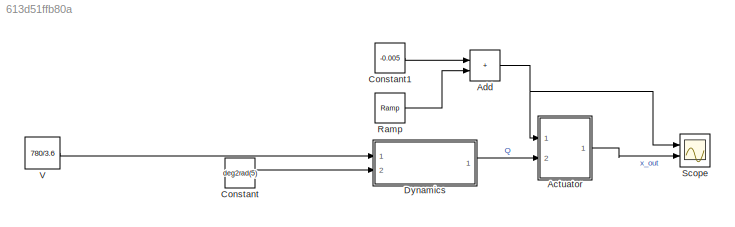
MODEL slx_613d51ffb80a
KIND model
CONFIG AbsTol = auto
CONFIG EnableMultiTasking = off
CONFIG FixedStep = auto
CONFIG MaxStep = auto
CONFIG MinStep = auto
CONFIG RelTol = 1e-3
CONFIG SampleTimeConstraint = Unconstrained
CONFIG SolverName = VariableStepAuto
CONFIG StartTime = 0.0
CONFIG StopTime = 10.0
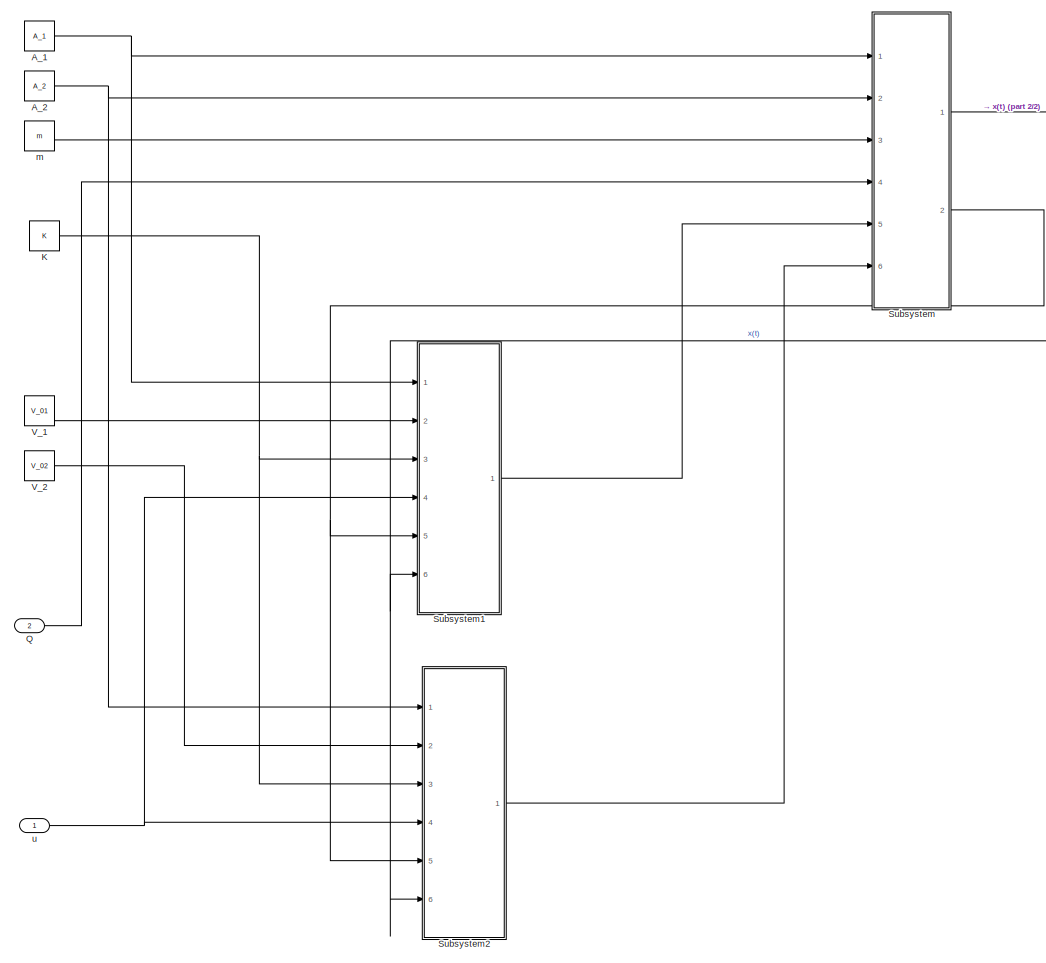
[diagram: Actuator - part 1/2, most of the canvas]
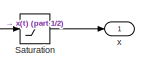
[diagram: Actuator - part 2/2, top right region]
BLOCK [SubSystem] Actuator
  Ports = [2, 1]
  RequestExecContextInheritance = off
BLOCK [Constant] Actuator/A_1
  Value = A_1
BLOCK [Constant] Actuator/A_2
  Value = A_2
BLOCK [Constant] Actuator/K
  Value = K
BLOCK [Inport] Actuator/Q
  Port = 2
BLOCK [Saturate] Actuator/Saturation
  LowerLimit = x_min
  UpperLimit = x_max
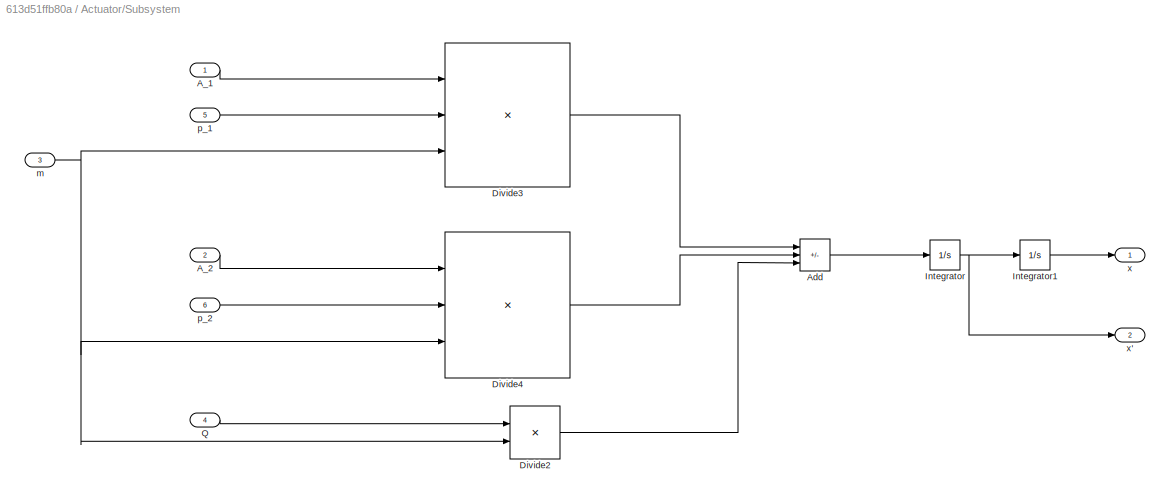
BLOCK [SubSystem] Actuator/Subsystem
  Ports = [6, 2]
  RequestExecContextInheritance = off
BLOCK [Inport] Actuator/Subsystem/A_1
BLOCK [Inport] Actuator/Subsystem/A_2
  Port = 2
BLOCK [Sum] Actuator/Subsystem/Add
  IconShape = rectangular
  Inputs = +-+
  Ports = [3, 1]
BLOCK [Product] Actuator/Subsystem/Divide2
  Inputs = */
  Ports = [2, 1]
BLOCK [Product] Actuator/Subsystem/Divide3
  Inputs = **/
  Ports = [3, 1]
BLOCK [Product] Actuator/Subsystem/Divide4
  Inputs = **/
  Ports = [3, 1]
BLOCK [Integrator] Actuator/Subsystem/Integrator
  Ports = [1, 1]
BLOCK [Integrator] Actuator/Subsystem/Integrator1
  Ports = [1, 1]
BLOCK [Inport] Actuator/Subsystem/Q
  Port = 4
BLOCK [Inport] Actuator/Subsystem/m
  Port = 3
BLOCK [Inport] Actuator/Subsystem/p_1
  Port = 5
BLOCK [Inport] Actuator/Subsystem/p_2
  Port = 6
BLOCK [Outport] Actuator/Subsystem/x
BLOCK [Outport] Actuator/Subsystem/x'
  Port = 2
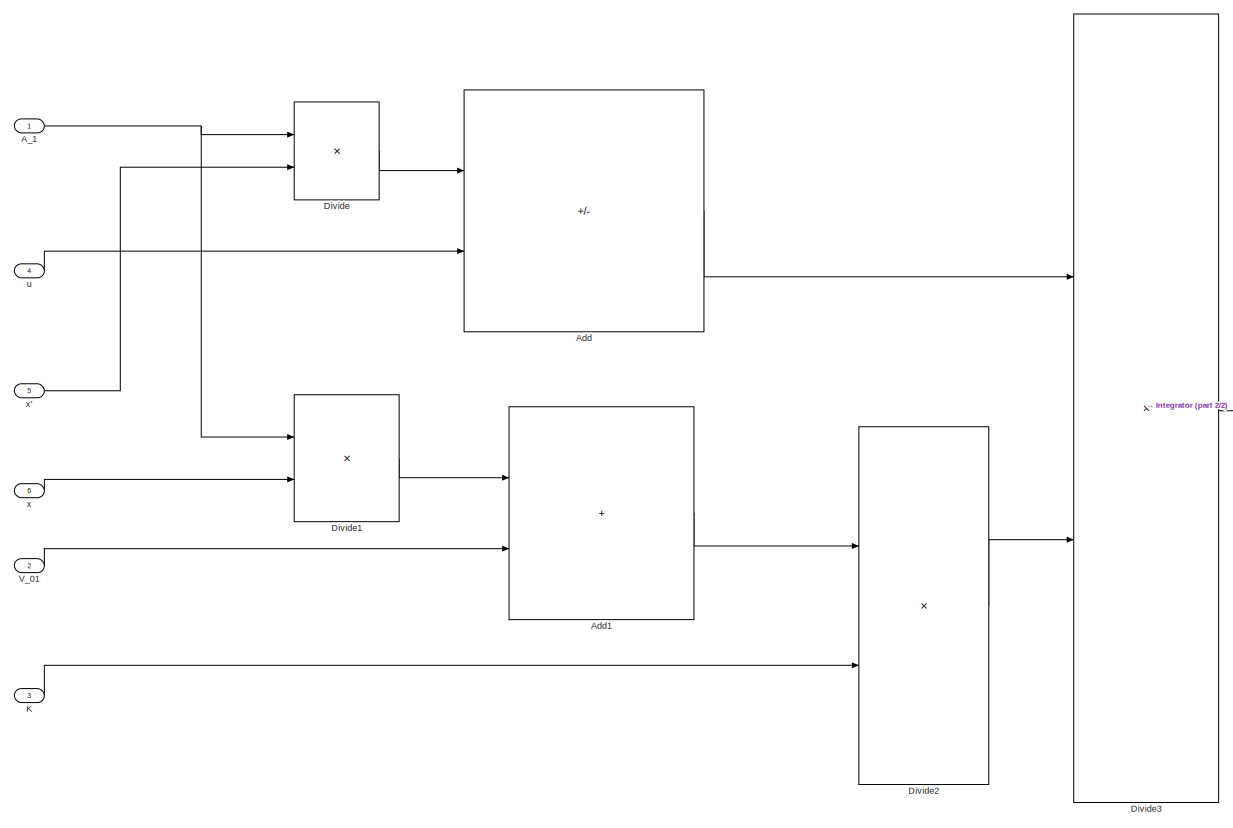
[diagram: Actuator/Subsystem1 - part 1/2, most of the canvas]
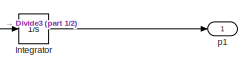
[diagram: Actuator/Subsystem1 - part 2/2, middle right region]
BLOCK [SubSystem] Actuator/Subsystem1
  Ports = [6, 1]
  RequestExecContextInheritance = off
BLOCK [Inport] Actuator/Subsystem1/A_1
BLOCK [Sum] Actuator/Subsystem1/Add
  IconShape = rectangular
  Inputs = -+
  Ports = [2, 1]
BLOCK [Sum] Actuator/Subsystem1/Add1
  IconShape = rectangular
  Ports = [2, 1]
BLOCK [Product] Actuator/Subsystem1/Divide
  Inputs = **
  Ports = [2, 1]
BLOCK [Product] Actuator/Subsystem1/Divide1
  Inputs = **
  Ports = [2, 1]
BLOCK [Product] Actuator/Subsystem1/Divide2
  Inputs = */
  Ports = [2, 1]
BLOCK [Product] Actuator/Subsystem1/Divide3
  Inputs = */
  Ports = [2, 1]
BLOCK [Integrator] Actuator/Subsystem1/Integrator
  Ports = [1, 1]
BLOCK [Inport] Actuator/Subsystem1/K
  Port = 3
BLOCK [Inport] Actuator/Subsystem1/V_01
  Port = 2
BLOCK [Outport] Actuator/Subsystem1/p1
BLOCK [Inport] Actuator/Subsystem1/u
  Port = 4
BLOCK [Inport] Actuator/Subsystem1/x
  Port = 6
BLOCK [Inport] Actuator/Subsystem1/x'
  Port = 5
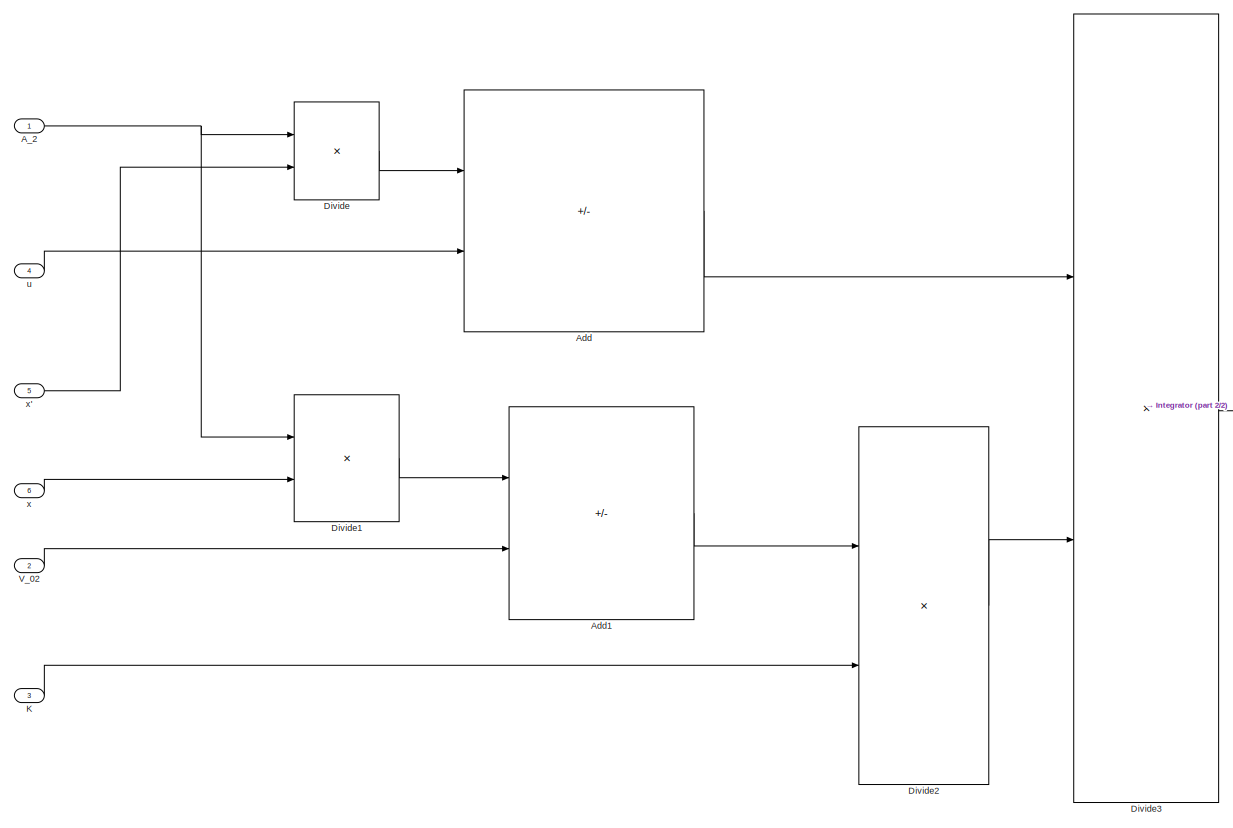
[diagram: Actuator/Subsystem2 - part 1/2, most of the canvas]
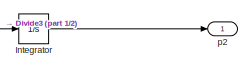
[diagram: Actuator/Subsystem2 - part 2/2, middle right region]
BLOCK [SubSystem] Actuator/Subsystem2
  Ports = [6, 1]
  RequestExecContextInheritance = off
BLOCK [Inport] Actuator/Subsystem2/A_2
BLOCK [Sum] Actuator/Subsystem2/Add
  IconShape = rectangular
  Inputs = +-
  Ports = [2, 1]
BLOCK [Sum] Actuator/Subsystem2/Add1
  IconShape = rectangular
  Inputs = -+
  Ports = [2, 1]
BLOCK [Product] Actuator/Subsystem2/Divide
  Inputs = **
  Ports = [2, 1]
BLOCK [Product] Actuator/Subsystem2/Divide1
  Inputs = **
  Ports = [2, 1]
BLOCK [Product] Actuator/Subsystem2/Divide2
  Inputs = */
  Ports = [2, 1]
BLOCK [Product] Actuator/Subsystem2/Divide3
  Inputs = */
  Ports = [2, 1]
BLOCK [Integrator] Actuator/Subsystem2/Integrator
  Ports = [1, 1]
BLOCK [Inport] Actuator/Subsystem2/K
  Port = 3
BLOCK [Inport] Actuator/Subsystem2/V_02
  Port = 2
BLOCK [Outport] Actuator/Subsystem2/p2
BLOCK [Inport] Actuator/Subsystem2/u
  Port = 4
BLOCK [Inport] Actuator/Subsystem2/x
  Port = 6
BLOCK [Inport] Actuator/Subsystem2/x'
  Port = 5
BLOCK [Constant] Actuator/V_1
  Value = V_01
BLOCK [Constant] Actuator/V_2
  Value = V_02
BLOCK [Constant] Actuator/m
  Value = m
BLOCK [Inport] Actuator/u
BLOCK [Outport] Actuator/x
BLOCK [Sum] Add
  IconShape = rectangular
  Ports = [2, 1]
BLOCK [Constant] Constant
  Value = deg2rad(5)
BLOCK [Constant] Constant1
  Value = -0.005
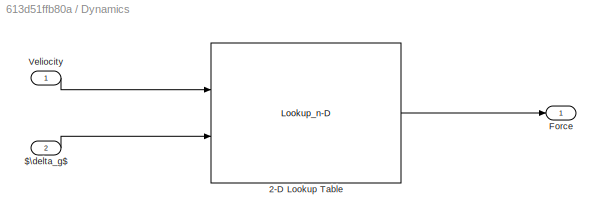
BLOCK [SubSystem] Dynamics
  Ports = [2, 1]
  RequestExecContextInheritance = off
BLOCK [Inport] Dynamics/$\delta_g$
  Port = 2
BLOCK [Lookup_n-D] Dynamics/2-D Lookup Table
  BreakpointsForDimension1 = velocity
  BreakpointsForDimension2 = angles
  InputPortMap = u0,u1
  InternalRulePriority = Speed
  Ports = [2, 1]
  RndMeth = Simplest
  Table = F_force
BLOCK [Outport] Dynamics/Force
BLOCK [Inport] Dynamics/Veliocity
BLOCK [Reference] Ramp  REF=simulink/Sources/Ramp
  Ports = [0, 1]
  SourceBlock = simulink/Sources/Ramp
  SourceProductBaseCode = SL
  SourceType = Ramp
BLOCK [Scope] Scope
  Floating = off
  NumInputPorts = 2
  Ports = [2]
  ScopeSpecificationString = Simulink.scopes.TimeScopeBlockCfg('CurrentConfiguration', extmgr.ConfigurationSet(extmgr.Configuration('Core','General UI',true),extmgr.Configuration('Core','Source UI',true),extmgr.Configuration('Sources','WiredSimulink',true),extmgr.Configuration('Visuals','Time Domain',true,'SerializedDisplays',{struct('MinYLimReal','-0.07892','MaxYLimReal','0.01026','YLabelReal','','MinYLimMag','0.00000','MaxY...<+1383ch>
BLOCK [Constant] V
  Value = 780/3.6
NET Actuator/A_1:1 -> Actuator/Subsystem1:1, Actuator/Subsystem:1
NET Actuator/A_2:1 -> Actuator/Subsystem2:1, Actuator/Subsystem:2
NET Actuator/K:1 -> Actuator/Subsystem1:3, Actuator/Subsystem2:3
LINE Actuator/Q:1 -> Actuator/Subsystem:4
LINE Actuator/Saturation:1 -> Actuator/x:1
LINE Actuator/Subsystem/A_1:1 -> Actuator/Subsystem/Divide3:1
LINE Actuator/Subsystem/A_2:1 -> Actuator/Subsystem/Divide4:1
LINE Actuator/Subsystem/Add:1 -> Actuator/Subsystem/Integrator:1
LINE Actuator/Subsystem/Divide2:1 -> Actuator/Subsystem/Add:3
LINE Actuator/Subsystem/Divide3:1 -> Actuator/Subsystem/Add:1
LINE Actuator/Subsystem/Divide4:1 -> Actuator/Subsystem/Add:2
LINE Actuator/Subsystem/Integrator1:1 -> Actuator/Subsystem/x:1
NET Actuator/Subsystem/Integrator:1 -> Actuator/Subsystem/Integrator1:1, Actuator/Subsystem/x':1
LINE Actuator/Subsystem/Q:1 -> Actuator/Subsystem/Divide2:1
NET Actuator/Subsystem/m:1 -> Actuator/Subsystem/Divide2:2, Actuator/Subsystem/Divide3:3, Actuator/Subsystem/Divide4:3
LINE Actuator/Subsystem/p_1:1 -> Actuator/Subsystem/Divide3:2
LINE Actuator/Subsystem/p_2:1 -> Actuator/Subsystem/Divide4:2
NET Actuator/Subsystem1/A_1:1 -> Actuator/Subsystem1/Divide1:1, Actuator/Subsystem1/Divide:1
LINE Actuator/Subsystem1/Add1:1 -> Actuator/Subsystem1/Divide2:1
LINE Actuator/Subsystem1/Add:1 -> Actuator/Subsystem1/Divide3:1
LINE Actuator/Subsystem1/Divide1:1 -> Actuator/Subsystem1/Add1:1
LINE Actuator/Subsystem1/Divide2:1 -> Actuator/Subsystem1/Divide3:2
LINE Actuator/Subsystem1/Divide3:1 -> Actuator/Subsystem1/Integrator:1
LINE Actuator/Subsystem1/Divide:1 -> Actuator/Subsystem1/Add:1
LINE Actuator/Subsystem1/Integrator:1 -> Actuator/Subsystem1/p1:1
LINE Actuator/Subsystem1/K:1 -> Actuator/Subsystem1/Divide2:2
LINE Actuator/Subsystem1/V_01:1 -> Actuator/Subsystem1/Add1:2
LINE Actuator/Subsystem1/u:1 -> Actuator/Subsystem1/Add:2
LINE Actuator/Subsystem1/x':1 -> Actuator/Subsystem1/Divide:2
LINE Actuator/Subsystem1/x:1 -> Actuator/Subsystem1/Divide1:2
LINE Actuator/Subsystem1:1 -> Actuator/Subsystem:5
NET Actuator/Subsystem2/A_2:1 -> Actuator/Subsystem2/Divide1:1, Actuator/Subsystem2/Divide:1
LINE Actuator/Subsystem2/Add1:1 -> Actuator/Subsystem2/Divide2:1
LINE Actuator/Subsystem2/Add:1 -> Actuator/Subsystem2/Divide3:1
LINE Actuator/Subsystem2/Divide1:1 -> Actuator/Subsystem2/Add1:1
LINE Actuator/Subsystem2/Divide2:1 -> Actuator/Subsystem2/Divide3:2
LINE Actuator/Subsystem2/Divide3:1 -> Actuator/Subsystem2/Integrator:1
LINE Actuator/Subsystem2/Divide:1 -> Actuator/Subsystem2/Add:1
LINE Actuator/Subsystem2/Integrator:1 -> Actuator/Subsystem2/p2:1
LINE Actuator/Subsystem2/K:1 -> Actuator/Subsystem2/Divide2:2
LINE Actuator/Subsystem2/V_02:1 -> Actuator/Subsystem2/Add1:2
LINE Actuator/Subsystem2/u:1 -> Actuator/Subsystem2/Add:2
LINE Actuator/Subsystem2/x':1 -> Actuator/Subsystem2/Divide:2
LINE Actuator/Subsystem2/x:1 -> Actuator/Subsystem2/Divide1:2
LINE Actuator/Subsystem2:1 -> Actuator/Subsystem:6
NET Actuator/Subsystem:1 -> Actuator/Saturation:1, Actuator/Subsystem1:6, Actuator/Subsystem2:6
NET Actuator/Subsystem:2 -> Actuator/Subsystem1:5, Actuator/Subsystem2:5
LINE Actuator/V_1:1 -> Actuator/Subsystem1:2
LINE Actuator/V_2:1 -> Actuator/Subsystem2:2
LINE Actuator/m:1 -> Actuator/Subsystem:3
NET Actuator/u:1 -> Actuator/Subsystem1:4, Actuator/Subsystem2:4
LINE Actuator:1 -> Scope:2
NET Add:1 -> Actuator:1, Scope:1
LINE Constant1:1 -> Add:1
LINE Constant:1 -> Dynamics:2
LINE Dynamics/$\delta_g$:1 -> Dynamics/2-D Lookup Table:2
LINE Dynamics/2-D Lookup Table:1 -> Dynamics/Force:1
LINE Dynamics/Veliocity:1 -> Dynamics/2-D Lookup Table:1
LINE Dynamics:1 -> Actuator:2
LINE Ramp:1 -> Add:2
LINE V:1 -> Dynamics:1
note: NET lines group one-source signal fan-out (src -> all destinations, sorted); 1:1 wires keep LINE
